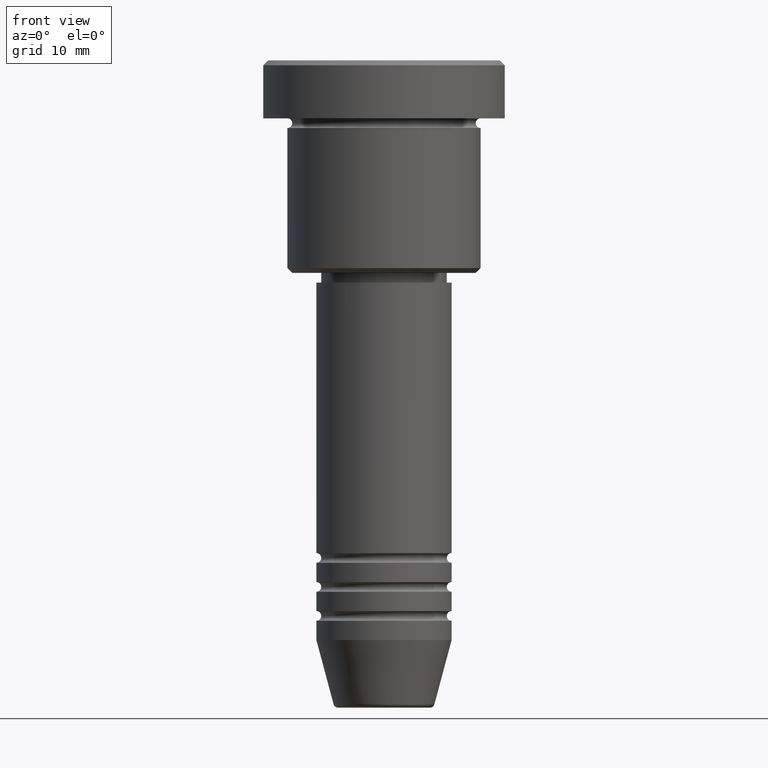
[diagram: clean part render]
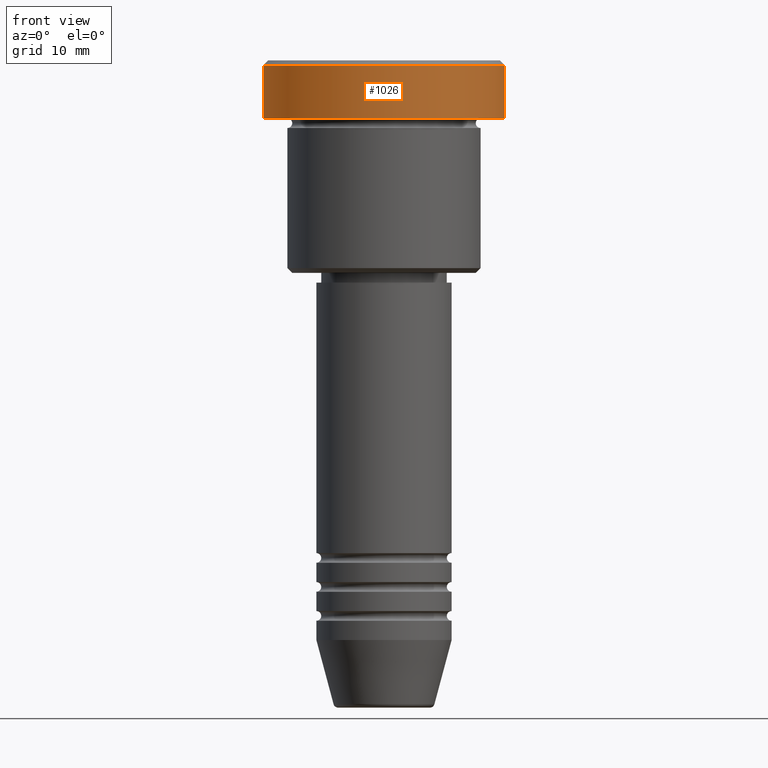
[diagram: same view with one face highlighted and labeled with its STEP entity id]
A machine part, front view. The second image highlights one B-rep face of the part: STEP entity #1026.
In plain terms, the highlighted cylindrical surface (partial cylindrical patch) has radius 12.5 mm, axis along (-0, -0, 1).
Its self-contained STEP definition (entity closure, byte-faithful):
#21 = EDGE_CURVE ( 'NONE', #795, #273, #959, .T. ) ;
#69 = AXIS2_PLACEMENT_3D ( 'NONE', #345, #274, #625 ) ;
#72 = CARTESIAN_POINT ( 'NONE',  ( -12.50000000000000000, 1.530808498934191521E-15, 0.000000000000000000 ) ) ;
#75 = EDGE_CURVE ( 'NONE', #728, #273, #384, .T. ) ;
#113 = DIRECTION ( 'NONE',  ( -0.000000000000000000, -0.000000000000000000, 1.000000000000000000 ) ) ;
#179 = AXIS2_PLACEMENT_3D ( 'NONE', #589, #1143, #514 ) ;
#199 = FACE_OUTER_BOUND ( 'NONE', #700, .T. ) ;
#273 = VERTEX_POINT ( 'NONE', #898 ) ;
#274 = DIRECTION ( 'NONE',  ( -0.000000000000000000, -0.000000000000000000, 1.000000000000000000 ) ) ;
#307 = CARTESIAN_POINT ( 'NONE',  ( 12.50000000000000000, 0.000000000000000000, -0.5000000000000056621 ) ) ;
#345 = CARTESIAN_POINT ( 'NONE',  ( 0.000000000000000000, 0.000000000000000000, -5.999999999999996447 ) ) ;
#384 = CIRCLE ( 'NONE', #179, 12.50000000000000000 ) ;
#431 = CARTESIAN_POINT ( 'NONE',  ( -12.50000000000000000, 1.530808498934191521E-15, -5.999999999999996447 ) ) ;
#478 = CYLINDRICAL_SURFACE ( 'NONE', #771, 12.50000000000000000 ) ;
#514 = DIRECTION ( 'NONE',  ( 1.000000000000000000, 0.000000000000000000, 0.000000000000000000 ) ) ;
#559 = VECTOR ( 'NONE', #779, 1000.000000000000000 ) ;
#589 = CARTESIAN_POINT ( 'NONE',  ( 0.000000000000000000, 0.000000000000000000, -0.5000000000000056621 ) ) ;
#625 = DIRECTION ( 'NONE',  ( 1.000000000000000000, 0.000000000000000000, 0.000000000000000000 ) ) ;
#655 = VECTOR ( 'NONE', #1130, 1000.000000000000000 ) ;
#681 = ORIENTED_EDGE ( 'NONE', *, *, #957, .T. ) ;
#700 = EDGE_LOOP ( 'NONE', ( #1055, #812, #681, #904 ) ) ;
#707 = CARTESIAN_POINT ( 'NONE',  ( 12.50000000000000000, 0.000000000000000000, -5.999999999999996447 ) ) ;
#728 = VERTEX_POINT ( 'NONE', #307 ) ;
#771 = AXIS2_PLACEMENT_3D ( 'NONE', #932, #113, #1030 ) ;
#779 = DIRECTION ( 'NONE',  ( -0.000000000000000000, -0.000000000000000000, 1.000000000000000000 ) ) ;
#795 = VERTEX_POINT ( 'NONE', #431 ) ;
#810 = EDGE_CURVE ( 'NONE', #795, #841, #905, .T. ) ;
#812 = ORIENTED_EDGE ( 'NONE', *, *, #810, .T. ) ;
#839 = LINE ( 'NONE', #1107, #655 ) ;
#841 = VERTEX_POINT ( 'NONE', #707 ) ;
#898 = CARTESIAN_POINT ( 'NONE',  ( -12.50000000000000000, 1.530808498934191521E-15, -0.5000000000000056621 ) ) ;
#904 = ORIENTED_EDGE ( 'NONE', *, *, #75, .T. ) ;
#905 = CIRCLE ( 'NONE', #69, 12.50000000000000000 ) ;
#932 = CARTESIAN_POINT ( 'NONE',  ( 0.000000000000000000, 0.000000000000000000, 0.000000000000000000 ) ) ;
#957 = EDGE_CURVE ( 'NONE', #841, #728, #839, .T. ) ;
#959 = LINE ( 'NONE', #72, #559 ) ;
#1026 = ADVANCED_FACE ( 'NONE', ( #199 ), #478, .T. ) ;
#1030 = DIRECTION ( 'NONE',  ( 1.000000000000000000, 0.000000000000000000, 0.000000000000000000 ) ) ;
#1055 = ORIENTED_EDGE ( 'NONE', *, *, #21, .F. ) ;
#1107 = CARTESIAN_POINT ( 'NONE',  ( 12.50000000000000000, 0.000000000000000000, 0.000000000000000000 ) ) ;
#1130 = DIRECTION ( 'NONE',  ( -0.000000000000000000, -0.000000000000000000, 1.000000000000000000 ) ) ;
#1143 = DIRECTION ( 'NONE',  ( 0.000000000000000000, 0.000000000000000000, -1.000000000000000000 ) ) ;